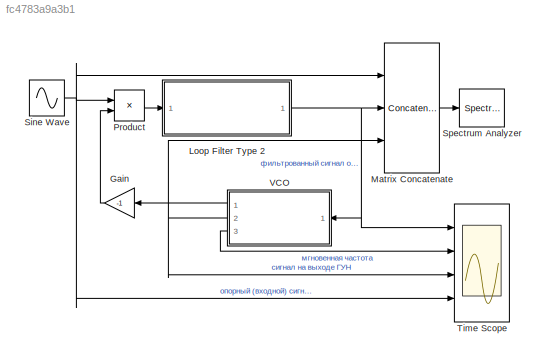
MODEL slx_fc4783a9a3b1
KIND model
CONFIG AbsTol = auto
CONFIG EnableMultiTasking = on
CONFIG FixedStep = auto
CONFIG MaxStep = auto
CONFIG MinStep = auto
CONFIG PreLoadFcn = fs=100e6;\nsim_time=32e-5;
CONFIG RelTol = 1e-3
CONFIG SampleTimeConstraint = Unconstrained
CONFIG Solver = VariableStepAuto
CONFIG SolverName = VariableStepAuto
CONFIG StartTime = 0.0
CONFIG StopTime = 2*sim_time 
BLOCK [Gain] Gain
  Gain = -1
  OutDataTypeStr = Inherit: Inherit via internal rule
  ParamDataTypeStr = Inherit: Inherit via internal rule
  SaturateOnIntegerOverflow = off
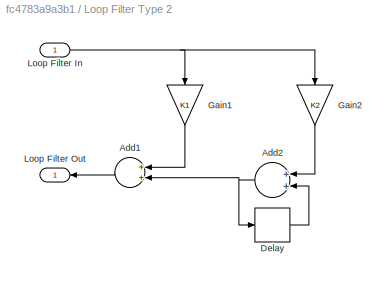
BLOCK [SubSystem] Loop Filter Type 2
  Ports = [1, 1]
  RequestExecContextInheritance = off
BLOCK [Sum] Loop Filter Type 2/Add1
  InputSameDT = off
  OutDataTypeStr = Inherit: Inherit via internal rule
  Ports = [2, 1]
  SaturateOnIntegerOverflow = off
BLOCK [Sum] Loop Filter Type 2/Add2
  InputSameDT = off
  OutDataTypeStr = Inherit: Inherit via internal rule
  Ports = [2, 1]
  SaturateOnIntegerOverflow = off
BLOCK [Delay] Loop Filter Type 2/Delay
  DelayLength = 1
  InitialCondition = 0
  InputPortMap = u0
  Ports = [1, 1]
BLOCK [Gain] Loop Filter Type 2/Gain1
  Gain = K1
  OutDataTypeStr = Inherit: Inherit via internal rule
  ParamDataTypeStr = Inherit: Inherit via internal rule
  SaturateOnIntegerOverflow = off
BLOCK [Gain] Loop Filter Type 2/Gain2
  Gain = K2
  OutDataTypeStr = Inherit: Inherit via internal rule
  ParamDataTypeStr = Inherit: Inherit via internal rule
  SaturateOnIntegerOverflow = off
BLOCK [Inport] Loop Filter Type 2/Loop Filter In
  IconDisplay = Port number
BLOCK [Outport] Loop Filter Type 2/Loop Filter Out
  IconDisplay = Port number
BLOCK [Concatenate] Matrix Concatenate
  ConcatenateDimension = 2
  Mode = Multidimensional array
  NumInputs = 3
  Ports = [3, 1]
BLOCK [Product] Product
  InputSameDT = off
  OutDataTypeStr = Inherit: Inherit via internal rule
  Ports = [2, 1]
  RndMeth = Floor
  SaturateOnIntegerOverflow = off
BLOCK [Sin] Sine Wave
  Frequency = 2*pi*3.6e6
  Ports = [0, 1]
  SampleTime = 1/fs
BLOCK [SpectrumAnalyzer] Spectrum Analyzer
  Ports = [1]
  ScopeSpecificationString = spbscopes.SpectrumAnalyzerBlockCfg('CurrentConfiguration', extmgr.ConfigurationSet(extmgr.Configuration('Core','General UI',true,'ShowStatusbar',false,'FigureColor',[1 1 1]),extmgr.Configuration('Core','Source UI',true),extmgr.Configuration('Sources','WiredSimulink',true),extmgr.Configuration('Sources','Simulink',false),extmgr.Configuration('Sources','Streaming',false),extmgr.Configuration('Source...<+3987ch>
BLOCK [Scope] Time Scope
  DefaultConfigurationName = spbscopes.TimeScopeBlockCfg
  Floating = off
  NumInputPorts = 4
  Ports = [4]
  ScopeSpecificationString = spbscopes.TimeScopeBlockCfg('CurrentConfiguration', extmgr.ConfigurationSet(extmgr.Configuration('Core','General UI',true,'ShowStatusbar',false,'FigureColor',[1 1 1]),extmgr.Configuration('Core','Source UI',true),extmgr.Configuration('Sources','WiredSimulink',true),extmgr.Configuration('Visuals','Time Domain',true,'DisplayLayoutDimensions',[4 1],'DisplayPropertyDefaults',struct('AxesColor',[1 1 1]...<+4585ch>
  UserDataPersistent = on
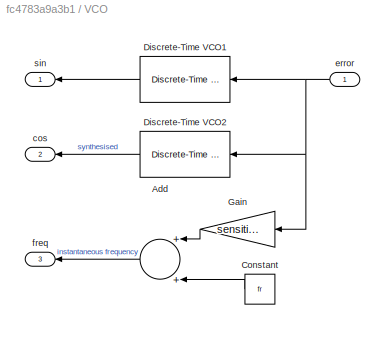
BLOCK [SubSystem] VCO
  Ports = [1, 3]
  RequestExecContextInheritance = off
BLOCK [Sum] VCO/Add
  InputSameDT = off
  OutDataTypeStr = Inherit: Inherit via internal rule
  Ports = [2, 1]
  SaturateOnIntegerOverflow = off
BLOCK [Constant] VCO/Constant
  Value = fr
BLOCK [Reference] VCO/Discrete-Time VCO1  REF=commsynccomp2/Discrete-Time
VCO
  Ports = [1, 1]
  SourceBlock = commsynccomp2/Discrete-Time\nVCO
  SourceProductBaseCode = CM
  SourceProductName = Communications System Toolbox
  SourceType = Discrete-Time VCO
BLOCK [Reference] VCO/Discrete-Time VCO2  REF=commsynccomp2/Discrete-Time
VCO
  Ports = [1, 1]
  SourceBlock = commsynccomp2/Discrete-Time\nVCO
  SourceProductBaseCode = CM
  SourceProductName = Communications System Toolbox
  SourceType = Discrete-Time VCO
BLOCK [Gain] VCO/Gain
  Gain = sensitivity
  OutDataTypeStr = Inherit: Inherit via internal rule
  ParamDataTypeStr = Inherit: Inherit via internal rule
  SaturateOnIntegerOverflow = off
BLOCK [Outport] VCO/cos
  IconDisplay = Port number
  Port = 2
BLOCK [Inport] VCO/error
  IconDisplay = Port number
BLOCK [Outport] VCO/freq
  IconDisplay = Port number
  Port = 3
BLOCK [Outport] VCO/sin
  IconDisplay = Port number
LINE Gain:1 -> Product:2
LINE Loop Filter Type 2/Add1:1 -> Loop Filter Type 2/Loop Filter Out:1
NET Loop Filter Type 2/Add2:1 -> Loop Filter Type 2/Add1:2, Loop Filter Type 2/Delay:1
LINE Loop Filter Type 2/Delay:1 -> Loop Filter Type 2/Add2:2
LINE Loop Filter Type 2/Gain1:1 -> Loop Filter Type 2/Add1:1
LINE Loop Filter Type 2/Gain2:1 -> Loop Filter Type 2/Add2:1
NET Loop Filter Type 2/Loop Filter In:1 -> Loop Filter Type 2/Gain1:1, Loop Filter Type 2/Gain2:1
NET Loop Filter Type 2:1 -> Matrix Concatenate:2, Time Scope:1, VCO:1
LINE Matrix Concatenate:1 -> Spectrum Analyzer:1
LINE Product:1 -> Loop Filter Type 2:1
NET Sine Wave:1 -> Matrix Concatenate:1, Product:1, Time Scope:4
LINE VCO/Add:1 -> VCO/freq:1
LINE VCO/Constant:1 -> VCO/Add:2
LINE VCO/Discrete-Time VCO1:1 -> VCO/sin:1
LINE VCO/Discrete-Time VCO2:1 -> VCO/cos:1
LINE VCO/Gain:1 -> VCO/Add:1
NET VCO/error:1 -> VCO/Discrete-Time VCO1:1, VCO/Discrete-Time VCO2:1, VCO/Gain:1
LINE VCO:1 -> Gain:1
NET VCO:2 -> Matrix Concatenate:3, Time Scope:3
LINE VCO:3 -> Time Scope:2
note: NET lines group one-source signal fan-out (src -> all destinations, sorted); 1:1 wires keep LINE
